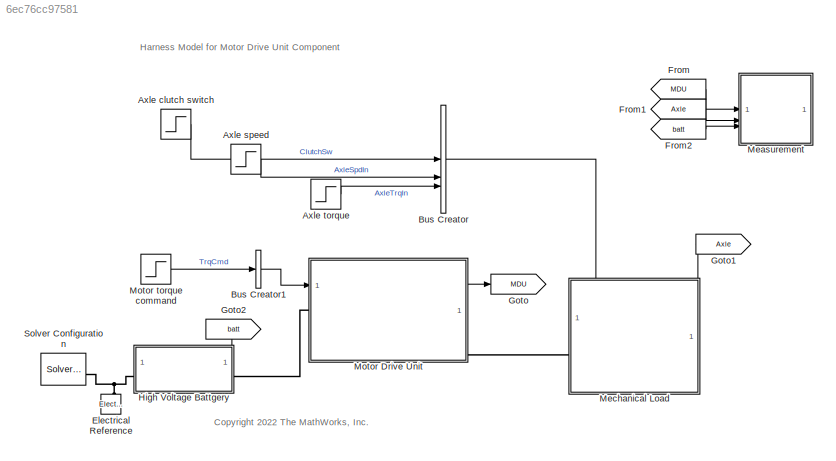
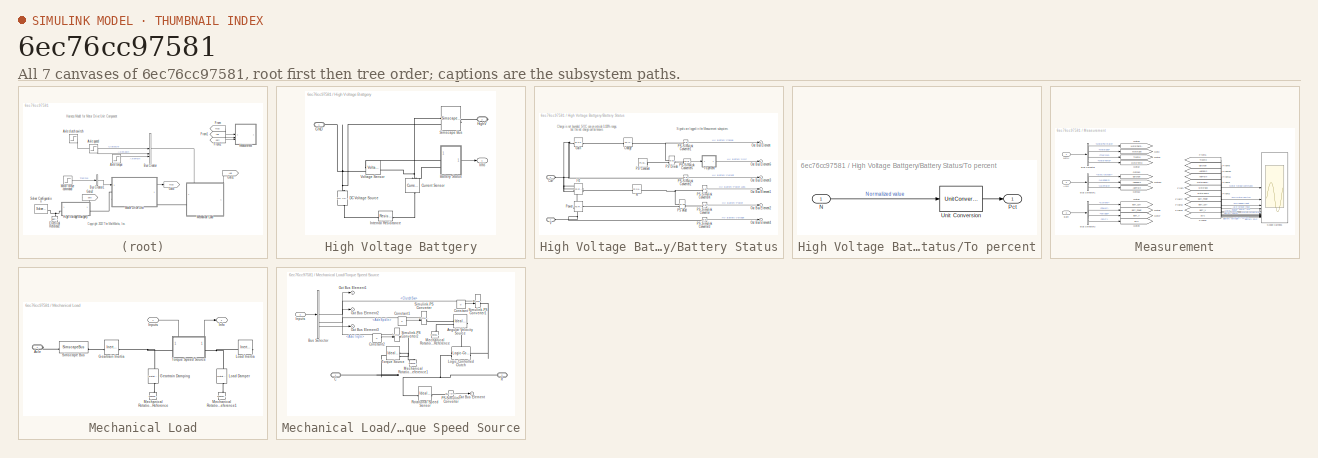
[diagram: thumbnail index - all 7 canvases of the model, root first then tree order]
MODEL mdl_6ec76cc97581
KIND model
CONFIG AbsTol = auto
CONFIG EnableMultiTasking = off
CONFIG FixedStep = auto
CONFIG MaxStep = auto
CONFIG MinStep = auto
CONFIG PreLoadFcn = MotorDriveUnit_Component_harness_params\n
CONFIG RelTol = 1e-3
CONFIG SampleTimeConstraint = Unconstrained
CONFIG SolverName = daessc
CONFIG StartTime = 0.0
CONFIG StopTime = 600
BLOCK [Step] Axle clutch switch
  After = 0
  AttributesFormatString = Before %<Before>\nTime %<Time>\nAfter %<After>
  NameLocation = left
  SampleTime = 0
BLOCK [Step] Axle speed
  After = 0
  AttributesFormatString = Before %<Before>\nTime %<Time>\nAfter %<After>
  NameLocation = left
  SampleTime = 0
BLOCK [Step] Axle torque
  After = 0
  AttributesFormatString = Before %<Before>\nTime %<Time>\nAfter %<After>
  Before = -10
  NameLocation = left
  SampleTime = 0
  Time = 400
BLOCK [BusCreator] Bus Creator
  DisplayOption = bar
  InheritFromInputs = on
  Inputs = 3
BLOCK [BusCreator] Bus Creator1
  DisplayOption = bar
  InheritFromInputs = on
  Inputs = 1
BLOCK [Reference] Electrical Reference  REF=fl_lib/Electrical/Electrical Elements/Electrical Reference
  SourceBlock = fl_lib/Electrical/Electrical Elements/Electrical Reference
  SourceType = Electrical Reference
BLOCK [From] From
  GotoTag = MDU
  NameLocation = left
BLOCK [From] From1
  GotoTag = Axle
  NameLocation = left
BLOCK [From] From2
  GotoTag = batt
  NameLocation = left
BLOCK [Goto] Goto
  GotoTag = MDU
BLOCK [Goto] Goto1
  GotoTag = Axle
  NameLocation = top
BLOCK [Goto] Goto2
  GotoTag = batt
  NameLocation = top
BLOCK [SubSystem] High Voltage Battgery
  PortSchema = {"entries":[{"content":{"sides":[{"content":{"connectorIds":["LConn1"]},"type":"ConnectorPlacement.EquallySpacedRectSide","uuid":"8acd7e9a-bb08-4de6-aa14-0989ebba81b9"},{"content":{"connectorIds":["RConn1"],"side":"RIGHT"},"type":"ConnectorPlacement.EquallySpacedRectSide","uuid":"f80e1afc-966f-4d6b-84f9-f0b60dd6f20c"},{"content":{"connectorIds":["Out1"],"side":"TOP"},"type":"ConnectorPlacement.Equ...<+251ch>
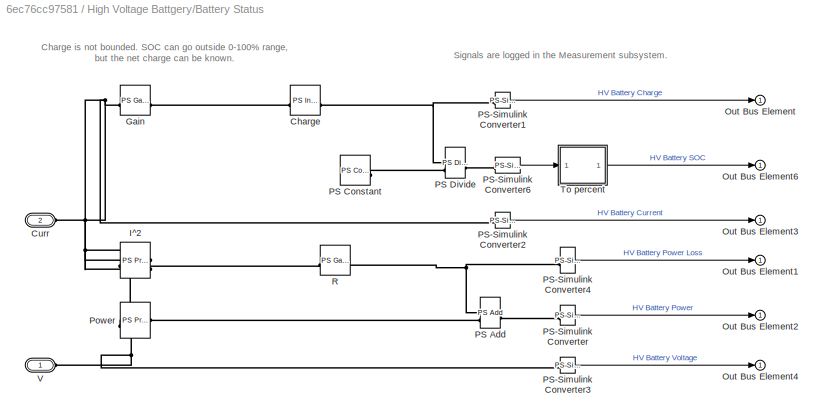
BLOCK [SubSystem] High Voltage Battgery/Battery Status
BLOCK [Reference] High Voltage Battgery/Battery Status/Charge  REF=fl_lib/Physical Signals/Linear Operators/PS Integrator
  AttributesFormatString = %<x0> [%<x0_unit>]
  SourceBlock = fl_lib/Physical Signals/Linear Operators/PS Integrator
  SourceType = PS Integrator
BLOCK [PMIOPort] High Voltage Battgery/Battery Status/Curr
  Port = 2
  Side = Left
BLOCK [Reference] High Voltage Battgery/Battery Status/Gain  REF=fl_lib/Physical Signals/Functions/PS Gain
  AttributesFormatString = %<gain>
  SourceBlock = fl_lib/Physical Signals/Functions/PS Gain
  SourceType = PS Gain
BLOCK [Reference] High Voltage Battgery/Battery Status/I^2  REF=fl_lib/Physical Signals/Functions/PS Product
  SourceBlock = fl_lib/Physical Signals/Functions/PS Product
  SourceType = PS Product
BLOCK [Outport] High Voltage Battgery/Battery Status/Out Bus Element
  AttributesFormatString = %<Unit>
BLOCK [Outport] High Voltage Battgery/Battery Status/Out Bus Element1
  AttributesFormatString = %<Unit>
BLOCK [Outport] High Voltage Battgery/Battery Status/Out Bus Element2
  AttributesFormatString = %<Unit>
BLOCK [Outport] High Voltage Battgery/Battery Status/Out Bus Element3
  AttributesFormatString = %<Unit>
BLOCK [Outport] High Voltage Battgery/Battery Status/Out Bus Element4
  AttributesFormatString = %<Unit>
BLOCK [Outport] High Voltage Battgery/Battery Status/Out Bus Element6
  AttributesFormatString = %<Unit>
BLOCK [Reference] High Voltage Battgery/Battery Status/PS Add  REF=fl_lib/Physical Signals/Functions/PS Add
  SourceBlock = fl_lib/Physical Signals/Functions/PS Add
  SourceType = PS Add
BLOCK [Reference] High Voltage Battgery/Battery Status/PS Constant  REF=fl_lib/Physical Signals/Sources/PS Constant
  AttributesFormatString = %<constant> [%<constant_unit>]
  NameLocation = left
  SourceBlock = fl_lib/Physical Signals/Sources/PS Constant
  SourceType = PS Constant
BLOCK [Reference] High Voltage Battgery/Battery Status/PS Divide  REF=fl_lib/Physical Signals/Functions/PS Divide
  SourceBlock = fl_lib/Physical Signals/Functions/PS Divide
  SourceType = PS Divide
BLOCK [Reference] High Voltage Battgery/Battery Status/PS-Simulink Converter  REF=nesl_utility/PS-Simulink
Converter
  AttributesFormatString = %<Unit>
  SourceBlock = nesl_utility/PS-Simulink\nConverter
  SourceType = PS-Simulink\nConverter
BLOCK [Reference] High Voltage Battgery/Battery Status/PS-Simulink Converter1  REF=nesl_utility/PS-Simulink
Converter
  AttributesFormatString = %<Unit>
  SourceBlock = nesl_utility/PS-Simulink\nConverter
  SourceType = PS-Simulink\nConverter
BLOCK [Reference] High Voltage Battgery/Battery Status/PS-Simulink Converter2  REF=nesl_utility/PS-Simulink
Converter
  AttributesFormatString = %<Unit>
  SourceBlock = nesl_utility/PS-Simulink\nConverter
  SourceType = PS-Simulink\nConverter
BLOCK [Reference] High Voltage Battgery/Battery Status/PS-Simulink Converter3  REF=nesl_utility/PS-Simulink
Converter
  AttributesFormatString = %<Unit>
  SourceBlock = nesl_utility/PS-Simulink\nConverter
  SourceType = PS-Simulink\nConverter
BLOCK [Reference] High Voltage Battgery/Battery Status/PS-Simulink Converter4  REF=nesl_utility/PS-Simulink
Converter
  AttributesFormatString = %<Unit>
  SourceBlock = nesl_utility/PS-Simulink\nConverter
  SourceType = PS-Simulink\nConverter
BLOCK [Reference] High Voltage Battgery/Battery Status/PS-Simulink Converter6  REF=nesl_utility/PS-Simulink
Converter
  AttributesFormatString = %<Unit>
  SourceBlock = nesl_utility/PS-Simulink\nConverter
  SourceType = PS-Simulink\nConverter
BLOCK [Reference] High Voltage Battgery/Battery Status/Power  REF=fl_lib/Physical Signals/Functions/PS Product
  SourceBlock = fl_lib/Physical Signals/Functions/PS Product
  SourceType = PS Product
BLOCK [Reference] High Voltage Battgery/Battery Status/R  REF=fl_lib/Physical Signals/Functions/PS Gain
  AttributesFormatString = %<gain> [%<gain_unit>]
  SourceBlock = fl_lib/Physical Signals/Functions/PS Gain
  SourceType = PS Gain
BLOCK [SubSystem] High Voltage Battgery/Battery Status/To percent
  ShowPortLabels = FromPortBlockName
BLOCK [Inport] High Voltage Battgery/Battery Status/To percent/N
BLOCK [Outport] High Voltage Battgery/Battery Status/To percent/Pct
  AttributesFormatString = %<Unit>
  Unit = %
BLOCK [UnitConversion] High Voltage Battgery/Battery Status/To percent/Unit Conversion
BLOCK [PMIOPort] High Voltage Battgery/Battery Status/V
  Side = Left
BLOCK [Reference] High Voltage Battgery/Current Sensor  REF=fl_lib/Electrical/Electrical Sensors/Current Sensor
  NameLocation = right
  SourceBlock = fl_lib/Electrical/Electrical Sensors/Current Sensor
  SourceType = Current Sensor
BLOCK [Reference] High Voltage Battgery/DC Voltage Source  REF=fl_lib/Electrical/Electrical Sources/DC Voltage Source
  AttributesFormatString = %<v0> [%<v0_unit>]
  NameLocation = right
  SourceBlock = fl_lib/Electrical/Electrical Sources/DC Voltage Source
  SourceType = DC Voltage Source
BLOCK [PMIOPort] High Voltage Battgery/GND
  Side = Left
BLOCK [PMIOPort] High Voltage Battgery/HighV
  Port = 2
  Side = Right
BLOCK [Outport] High Voltage Battgery/Info
BLOCK [Reference] High Voltage Battgery/Internal Resistance  REF=fl_lib/Electrical/Electrical Elements/Resistor
  AttributesFormatString = %<R> [%<R_unit>]
  SourceBlock = fl_lib/Electrical/Electrical Elements/Resistor
  SourceType = Resistor
BLOCK [SimscapeBus] High Voltage Battgery/Simscape Bus
  AttributesFormatString = %<ConnectionType>
  ConnectionType = Bus: Bus_HighVoltage
  HierarchyStrings = Plus;Minus
BLOCK [Reference] High Voltage Battgery/Voltage Sensor  REF=fl_lib/Electrical/Electrical Sensors/Voltage Sensor
  SourceBlock = fl_lib/Electrical/Electrical Sensors/Voltage Sensor
  SourceType = Voltage Sensor
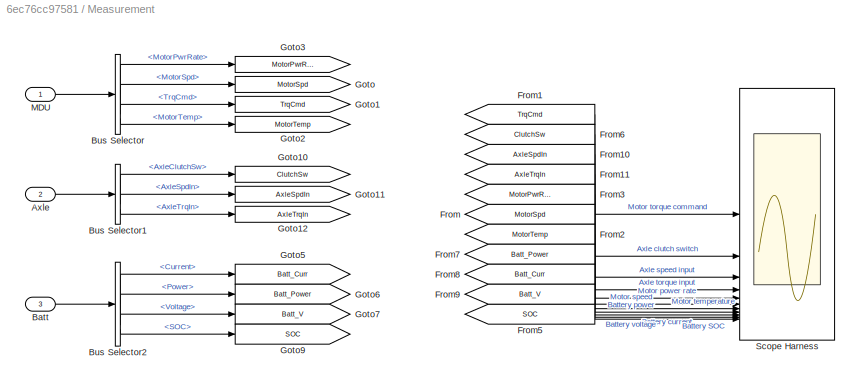
BLOCK [SubSystem] Measurement
BLOCK [Inport] Measurement/Axle
  Port = 2
BLOCK [Inport] Measurement/Batt
  Port = 3
BLOCK [BusSelector] Measurement/Bus Selector
  OutputSignals = MotorPwrRate,MotorSpd,TrqCmd,MotorTemp
BLOCK [BusSelector] Measurement/Bus Selector1
  OutputSignals = AxleClutchSw,AxleSpdIn,AxleTrqIn
BLOCK [BusSelector] Measurement/Bus Selector2
  OutputSignals = Current,Power,Voltage,SOC
BLOCK [From] Measurement/From
  GotoTag = MotorSpd
  NameLocation = left
BLOCK [From] Measurement/From1
  GotoTag = TrqCmd
  NameLocation = left
BLOCK [From] Measurement/From10
  GotoTag = AxleSpdIn
  NameLocation = left
BLOCK [From] Measurement/From11
  GotoTag = AxleTrqIn
  NameLocation = left
BLOCK [From] Measurement/From2
  GotoTag = MotorTemp
  NameLocation = left
BLOCK [From] Measurement/From3
  GotoTag = MotorPwrRate
  NameLocation = left
BLOCK [From] Measurement/From5
  GotoTag = SOC
  NameLocation = left
BLOCK [From] Measurement/From6
  GotoTag = ClutchSw
  NameLocation = left
BLOCK [From] Measurement/From7
  GotoTag = Batt_Power
  NameLocation = left
BLOCK [From] Measurement/From8
  GotoTag = Batt_Curr
  NameLocation = left
BLOCK [From] Measurement/From9
  GotoTag = Batt_V
  NameLocation = left
BLOCK [Goto] Measurement/Goto
  GotoTag = MotorSpd
  NameLocation = right
BLOCK [Goto] Measurement/Goto1
  GotoTag = TrqCmd
  NameLocation = right
BLOCK [Goto] Measurement/Goto10
  GotoTag = ClutchSw
  NameLocation = right
BLOCK [Goto] Measurement/Goto11
  GotoTag = AxleSpdIn
  NameLocation = right
BLOCK [Goto] Measurement/Goto12
  GotoTag = AxleTrqIn
  NameLocation = right
BLOCK [Goto] Measurement/Goto2
  GotoTag = MotorTemp
  NameLocation = right
BLOCK [Goto] Measurement/Goto3
  GotoTag = MotorPwrRate
  NameLocation = right
BLOCK [Goto] Measurement/Goto5
  GotoTag = Batt_Curr
  NameLocation = right
BLOCK [Goto] Measurement/Goto6
  GotoTag = Batt_Power
  NameLocation = right
BLOCK [Goto] Measurement/Goto7
  GotoTag = Batt_V
  NameLocation = right
BLOCK [Goto] Measurement/Goto9
  GotoTag = SOC
  NameLocation = right
BLOCK [Inport] Measurement/MDU
BLOCK [Scope] Measurement/Scope Harness
  Floating = off
  NumInputPorts = 11
  ScopeSpecificationString = Simulink.scopes.TimeScopeBlockCfg('CurrentConfiguration', extmgr.ConfigurationSet(extmgr.Configuration('Core','General UI',true),extmgr.Configuration('Core','Source UI',true),extmgr.Configuration('Sources','WiredSimulink',true),extmgr.Configuration('Visuals','Time Domain',true,'SerializedDisplays',{struct('MinYLimReal','-75.00000','MaxYLimReal','175.00000','YLabelReal','','MinYLimMag','0.00000','M...<+9093ch>
BLOCK [SubSystem] Mechanical Load
  PortSchema = {"entries":[{"content":{"sides":[{"content":{"connectorIds":["LConn1"]},"type":"ConnectorPlacement.EquallySpacedRectSide","uuid":"18221845-08ef-4cf2-b090-320221152030"},{"content":{"connectorIds":[],"side":"RIGHT"},"type":"ConnectorPlacement.EquallySpacedRectSide","uuid":"d5b0548b-74c8-455a-9783-7dc299f3571f"},{"content":{"connectorIds":["In1","Out1"],"side":"TOP"},"type":"ConnectorPlacement.Equal...<+249ch>
BLOCK [PMIOPort] Mechanical Load/Axle
  Side = Left
BLOCK [Reference] Mechanical Load/Geartrain Damping  REF=fl_lib/Mechanical/Rotational Elements/Rotational Damper
  AttributesFormatString = %<D>\n%<D_unit>
  NameLocation = left
  SourceBlock = fl_lib/Mechanical/Rotational Elements/Rotational Damper
  SourceType = Rotational Damper
BLOCK [Reference] Mechanical Load/Geartrain Inertia  REF=fl_lib/Mechanical/Rotational Elements/Inertia
  AttributesFormatString = %<inertia> %<inertia_unit>\nPriority: %<w_priority>
  NameLocation = top
  SourceBlock = fl_lib/Mechanical/Rotational Elements/Inertia
  SourceType = Inertia
BLOCK [Outport] Mechanical Load/Info
BLOCK [Inport] Mechanical Load/Inputs
BLOCK [Reference] Mechanical Load/Load Damper  REF=fl_lib/Mechanical/Rotational Elements/Rotational Damper
  AttributesFormatString = %<D>\n%<D_unit>
  NameLocation = right
  SourceBlock = fl_lib/Mechanical/Rotational Elements/Rotational Damper
  SourceType = Rotational Damper
BLOCK [Reference] Mechanical Load/Load Inertia  REF=fl_lib/Mechanical/Rotational Elements/Inertia
  AttributesFormatString = %<inertia> [%<inertia_unit>]\n%<w> [%<w_unit>]\nPriority: %<w_priority>
  NameLocation = right
  SourceBlock = fl_lib/Mechanical/Rotational Elements/Inertia
  SourceType = Inertia
BLOCK [Reference] Mechanical Load/Mechanical Rotational Reference  REF=fl_lib/Mechanical/Rotational Elements/Mechanical
Rotational Reference
  NameLocation = left
  SourceBlock = fl_lib/Mechanical/Rotational Elements/Mechanical\nRotational Reference
  SourceType = Mechanical\nRotational Reference
BLOCK [Reference] Mechanical Load/Mechanical Rotational Reference1  REF=fl_lib/Mechanical/Rotational Elements/Mechanical
Rotational Reference
  NameLocation = right
  SourceBlock = fl_lib/Mechanical/Rotational Elements/Mechanical\nRotational Reference
  SourceType = Mechanical\nRotational Reference
BLOCK [SimscapeBus] Mechanical Load/Simscape Bus
  ConnectionType = Bus: Bus_Rotational
  HierarchyStrings = AngSpd
BLOCK [SubSystem] Mechanical Load/Torque Speed Source
  PortSchema = {"entries":[{"content":{"sides":[{"content":{"connectorIds":["LConn1"]},"type":"ConnectorPlacement.EquallySpacedRectSide","uuid":"92a06674-aaa2-495f-b380-fd1e5a218eb3"},{"content":{"connectorIds":["RConn1"],"side":"RIGHT"},"type":"ConnectorPlacement.EquallySpacedRectSide","uuid":"3e9807eb-b215-4ab1-ac02-6574a58f93c0"},{"content":{"connectorIds":["In1","Out1"],"side":"TOP"},"type":"ConnectorPlaceme...<+257ch>
BLOCK [Reference] Mechanical Load/Torque Speed Source/Angular Velocity Source  REF=fl_lib/Mechanical/Mechanical Sources/Ideal Angular
Velocity Source
  SourceBlock = fl_lib/Mechanical/Mechanical Sources/Ideal Angular\nVelocity Source
  SourceType = Ideal Angular\nVelocity Source
BLOCK [BusSelector] Mechanical Load/Torque Speed Source/Bus Selector
  OutputSignals = ClutchSw,AxleSpdIn,AxleTrqIn
BLOCK [PMIOPort] Mechanical Load/Torque Speed Source/C
  Side = Left
BLOCK [Constant] Mechanical Load/Torque Speed Source/Constant
  NameLocation = left
  Value = 0
BLOCK [Constant] Mechanical Load/Torque Speed Source/Constant1
  NameLocation = left
  Value = 0
BLOCK [Constant] Mechanical Load/Torque Speed Source/Constant2
  NameLocation = left
  Value = 0
BLOCK [Inport] Mechanical Load/Torque Speed Source/Inputs
BLOCK [Reference] Mechanical Load/Torque Speed Source/Logic-Controlled Clutch  REF=sdl_lib/Clutches/Logic-Controlled
Clutch
  SourceBlock = sdl_lib/Clutches/Logic-Controlled\nClutch
  SourceType = Logic-Controlled\nClutch
BLOCK [Reference] Mechanical Load/Torque Speed Source/Mechanical Rotational Reference  REF=fl_lib/Mechanical/Rotational Elements/Mechanical
Rotational Reference
  NameLocation = left
  SourceBlock = fl_lib/Mechanical/Rotational Elements/Mechanical\nRotational Reference
  SourceType = Mechanical\nRotational Reference
BLOCK [Reference] Mechanical Load/Torque Speed Source/Mechanical Rotational Reference1  REF=fl_lib/Mechanical/Rotational Elements/Mechanical
Rotational Reference
  SourceBlock = fl_lib/Mechanical/Rotational Elements/Mechanical\nRotational Reference
  SourceType = Mechanical\nRotational Reference
BLOCK [Outport] Mechanical Load/Torque Speed Source/Out Bus Element
BLOCK [Outport] Mechanical Load/Torque Speed Source/Out Bus Element1
  NameLocation = top
BLOCK [Outport] Mechanical Load/Torque Speed Source/Out Bus Element2
  NameLocation = top
BLOCK [Outport] Mechanical Load/Torque Speed Source/Out Bus Element3
  NameLocation = top
BLOCK [Reference] Mechanical Load/Torque Speed Source/PS-Simulink Converter  REF=nesl_utility/PS-Simulink
Converter
  AttributesFormatString = %<Unit>
  SourceBlock = nesl_utility/PS-Simulink\nConverter
  SourceType = PS-Simulink\nConverter
BLOCK [PMIOPort] Mechanical Load/Torque Speed Source/R
  Port = 2
  Side = Right
BLOCK [Reference] Mechanical Load/Torque Speed Source/Rotational Speed Sensor  REF=fl_lib/Mechanical/Mechanical Sensors/Ideal Rotational
Motion Sensor
  SourceBlock = fl_lib/Mechanical/Mechanical Sensors/Ideal Rotational\nMotion Sensor
  SourceType = Ideal Rotational\nMotion Sensor
BLOCK [Reference] Mechanical Load/Torque Speed Source/Simulink-PS Converter  REF=nesl_utility/Simulink-PS
Converter
  AttributesFormatString = %<Unit>
  SourceBlock = nesl_utility/Simulink-PS\nConverter
  SourceType = Simulink-PS\nConverter
BLOCK [Reference] Mechanical Load/Torque Speed Source/Simulink-PS Converter1  REF=nesl_utility/Simulink-PS
Converter
  AttributesFormatString = %<Unit>\nDerivative: %<FilteringAndDerivatives>
  NameLocation = top
  SourceBlock = nesl_utility/Simulink-PS\nConverter
  SourceType = Simulink-PS\nConverter
BLOCK [Reference] Mechanical Load/Torque Speed Source/Simulink-PS Converter2  REF=nesl_utility/Simulink-PS
Converter
  AttributesFormatString = %<Unit>
  NameLocation = top
  SourceBlock = nesl_utility/Simulink-PS\nConverter
  SourceType = Simulink-PS\nConverter
BLOCK [Reference] Mechanical Load/Torque Speed Source/Torque Source  REF=fl_lib/Mechanical/Mechanical Sources/Ideal Torque Source
  SourceBlock = fl_lib/Mechanical/Mechanical Sources/Ideal Torque Source
  SourceType = Ideal Torque Source
BLOCK [SubSystem] Motor Drive Unit
  PortSchema = {"entries":[{"content":{"sides":[{"content":{"connectorIds":["In1","LConn1"]},"type":"ConnectorPlacement.EquallySpacedRectSide","uuid":"02d16a10-ccfb-4288-a5a1-1144159c5ca2"},{"content":{"connectorIds":["Out1","LConn2"],"side":"RIGHT"},"type":"ConnectorPlacement.EquallySpacedRectSide","uuid":"b2601986-efe5-4f5e-bd54-3f5cb03e9252"},{"content":{"side":"TOP"},"type":"ConnectorPlacement.EquallySpacedR...<+240ch>
  ReferencedSubsystem = MotorDriveUnit_refsub_Basic
  T = initial.MDU_AirTemp_K
  T_eff = motorDriveUnit.trq_eff_Nm
  Tc = motorDriveUnit.responseTime_s
  Value = motorDriveUnit.powerMax_kW
  eff = motorDriveUnit.efficiency_pct
  k = motorDriveUnit.dampSpringStiffness_Nm_per_rad
  mu_visc = motorDriveUnit.dampSpringFriction_Nm_per_rpm
  temperature = initial.MDU_Temperature_K
  thermal_mass = motorDriveUnit.thermalMass_J_perK
  torque_max = motorDriveUnit.trqMax_Nm
  w_eff = motorDriveUnit.spd_eff_rpm
  w_tol = smoothing.MDU_dampSpringVelTol_rpm
BLOCK [Step] Motor torque command
  After = -50
  AttributesFormatString = Before %<Before>\nTime %<Time>\nAfter %<After>
  Before = 150
  NameLocation = left
  SampleTime = 0
  Time = 300
BLOCK [Reference] Solver Configuration  REF=nesl_utility/Solver
Configuration
  AttributesFormatString = Local solver %<UseLocalSolver>
  NameLocation = top
  SourceBlock = nesl_utility/Solver\nConfiguration
  SourceType = Solver\nConfiguration
ANNOTATION (root): <copyright redacted>
ANNOTATION (root): Harness Model for Motor Drive Unit Component
ANNOTATION High Voltage Battgery/Battery Status: Charge is not bounded. SOC can go outside 0-100% range, but the net charge can be known.
ANNOTATION High Voltage Battgery/Battery Status: Signals are logged in the Measurement subsystem.
LINE Axle clutch switch:1 -> Bus Creator:1
LINE Axle speed:1 -> Bus Creator:2
LINE Axle torque:1 -> Bus Creator:3
LINE Bus Creator1:1 -> Motor Drive Unit:1
LINE Bus Creator:1 -> Mechanical Load:1
LINE From1:1 -> Measurement:2
LINE From2:1 -> Measurement:3
LINE From:1 -> Measurement:1
LINE High Voltage Battgery/Battery Status/PS-Simulink Converter1:1 -> High Voltage Battgery/Battery Status/Out Bus Element:1
LINE High Voltage Battgery/Battery Status/PS-Simulink Converter2:1 -> High Voltage Battgery/Battery Status/Out Bus Element3:1
LINE High Voltage Battgery/Battery Status/PS-Simulink Converter3:1 -> High Voltage Battgery/Battery Status/Out Bus Element4:1
LINE High Voltage Battgery/Battery Status/PS-Simulink Converter4:1 -> High Voltage Battgery/Battery Status/Out Bus Element1:1
LINE High Voltage Battgery/Battery Status/PS-Simulink Converter6:1 -> High Voltage Battgery/Battery Status/To percent:1
LINE High Voltage Battgery/Battery Status/PS-Simulink Converter:1 -> High Voltage Battgery/Battery Status/Out Bus Element2:1
LINE High Voltage Battgery/Battery Status/To percent/N:1 -> High Voltage Battgery/Battery Status/To percent/Unit Conversion:1
LINE High Voltage Battgery/Battery Status/To percent/Unit Conversion:1 -> High Voltage Battgery/Battery Status/To percent/Pct:1
LINE High Voltage Battgery/Battery Status/To percent:1 -> High Voltage Battgery/Battery Status/Out Bus Element6:1
LINE High Voltage Battgery/Battery Status:1 -> High Voltage Battgery/Info:1
LINE High Voltage Battgery:1 -> Goto2:1
LINE Measurement/Axle:1 -> Measurement/Bus Selector1:1
LINE Measurement/Batt:1 -> Measurement/Bus Selector2:1
LINE Measurement/Bus Selector1:1 -> Measurement/Goto10:1
LINE Measurement/Bus Selector1:2 -> Measurement/Goto11:1
LINE Measurement/Bus Selector1:3 -> Measurement/Goto12:1
LINE Measurement/Bus Selector2:1 -> Measurement/Goto5:1
LINE Measurement/Bus Selector2:2 -> Measurement/Goto6:1
LINE Measurement/Bus Selector2:3 -> Measurement/Goto7:1
LINE Measurement/Bus Selector2:4 -> Measurement/Goto9:1
LINE Measurement/Bus Selector:1 -> Measurement/Goto3:1
LINE Measurement/Bus Selector:2 -> Measurement/Goto:1
LINE Measurement/Bus Selector:3 -> Measurement/Goto1:1
LINE Measurement/Bus Selector:4 -> Measurement/Goto2:1
LINE Measurement/From10:1 -> Measurement/Scope Harness:3
LINE Measurement/From11:1 -> Measurement/Scope Harness:4
LINE Measurement/From1:1 -> Measurement/Scope Harness:1
LINE Measurement/From2:1 -> Measurement/Scope Harness:7
LINE Measurement/From3:1 -> Measurement/Scope Harness:5
LINE Measurement/From5:1 -> Measurement/Scope Harness:11
LINE Measurement/From6:1 -> Measurement/Scope Harness:2
LINE Measurement/From7:1 -> Measurement/Scope Harness:8
LINE Measurement/From8:1 -> Measurement/Scope Harness:9
LINE Measurement/From9:1 -> Measurement/Scope Harness:10
LINE Measurement/From:1 -> Measurement/Scope Harness:6
LINE Measurement/MDU:1 -> Measurement/Bus Selector:1
LINE Mechanical Load/Inputs:1 -> Mechanical Load/Torque Speed Source:1
NET Mechanical Load/Torque Speed Source/Bus Selector:1 -> Mechanical Load/Torque Speed Source/Out Bus Element1:1, Mechanical Load/Torque Speed Source/Simulink-PS Converter1:1
NET Mechanical Load/Torque Speed Source/Bus Selector:2 -> Mechanical Load/Torque Speed Source/Out Bus Element2:1, Mechanical Load/Torque Speed Source/Simulink-PS Converter:1
NET Mechanical Load/Torque Speed Source/Bus Selector:3 -> Mechanical Load/Torque Speed Source/Out Bus Element3:1, Mechanical Load/Torque Speed Source/Simulink-PS Converter2:1
LINE Mechanical Load/Torque Speed Source/Constant1:1 -> Mechanical Load/Torque Speed Source/Simulink-PS Converter:2
LINE Mechanical Load/Torque Speed Source/Constant2:1 -> Mechanical Load/Torque Speed Source/Simulink-PS Converter2:2
LINE Mechanical Load/Torque Speed Source/Constant:1 -> Mechanical Load/Torque Speed Source/Simulink-PS Converter1:2
LINE Mechanical Load/Torque Speed Source/Inputs:1 -> Mechanical Load/Torque Speed Source/Bus Selector:1
LINE Mechanical Load/Torque Speed Source/PS-Simulink Converter:1 -> Mechanical Load/Torque Speed Source/Out Bus Element:1
LINE Mechanical Load/Torque Speed Source:1 -> Mechanical Load/Info:1
LINE Mechanical Load:1 -> Goto1:1
LINE Motor Drive Unit:1 -> Goto:1
LINE Motor torque command:1 -> Bus Creator1:1
PNET net1: Electrical Reference:LConn1 -- High Voltage Battgery:LConn1 -- Solver Configuration:RConn1
PLINE High Voltage Battgery/Battery Status/Charge:LConn1 -- High Voltage Battgery/Battery Status/Gain:RConn1
PNET net2: High Voltage Battgery/Battery Status/Charge:RConn1 -- High Voltage Battgery/Battery Status/PS Divide:LConn1 -- High Voltage Battgery/Battery Status/PS-Simulink Converter1:LConn1
PNET net3: High Voltage Battgery/Battery Status/Curr:RConn1 -- High Voltage Battgery/Battery Status/Gain:LConn1 -- High Voltage Battgery/Battery Status/I^2:LConn1 -- High Voltage Battgery/Battery Status/I^2:LConn2 -- High Voltage Battgery/Battery Status/PS-Simulink Converter2:LConn1 -- High Voltage Battgery/Battery Status/Power:LConn2
PLINE High Voltage Battgery/Battery Status/I^2:RConn1 -- High Voltage Battgery/Battery Status/R:LConn1
PNET net4: High Voltage Battgery/Battery Status/PS Add:LConn1 -- High Voltage Battgery/Battery Status/PS-Simulink Converter4:LConn1 -- High Voltage Battgery/Battery Status/R:RConn1
PLINE High Voltage Battgery/Battery Status/PS Add:LConn2 -- High Voltage Battgery/Battery Status/Power:RConn1
PLINE High Voltage Battgery/Battery Status/PS Add:RConn1 -- High Voltage Battgery/Battery Status/PS-Simulink Converter:LConn1
PLINE High Voltage Battgery/Battery Status/PS Constant:RConn1 -- High Voltage Battgery/Battery Status/PS Divide:LConn2
PLINE High Voltage Battgery/Battery Status/PS Divide:RConn1 -- High Voltage Battgery/Battery Status/PS-Simulink Converter6:LConn1
PNET net5: High Voltage Battgery/Battery Status/PS-Simulink Converter3:LConn1 -- High Voltage Battgery/Battery Status/Power:LConn1 -- High Voltage Battgery/Battery Status/V:RConn1
PLINE High Voltage Battgery/Battery Status:LConn1 -- High Voltage Battgery/Voltage Sensor:RConn1
PLINE High Voltage Battgery/Battery Status:LConn2 -- High Voltage Battgery/Current Sensor:RConn1
PLINE High Voltage Battgery/Current Sensor:LConn1 -- High Voltage Battgery/Internal Resistance:RConn1
PNET net6: High Voltage Battgery/Current Sensor:RConn2 -- High Voltage Battgery/Simscape Bus:LConn1 -- High Voltage Battgery/Voltage Sensor:LConn1
PLINE High Voltage Battgery/DC Voltage Source:LConn1 -- High Voltage Battgery/Internal Resistance:LConn1
PNET net7: High Voltage Battgery/DC Voltage Source:RConn1 -- High Voltage Battgery/GND:RConn1 -- High Voltage Battgery/Simscape Bus:LConn2 -- High Voltage Battgery/Voltage Sensor:RConn2
PLINE High Voltage Battgery/HighV:RConn1 -- High Voltage Battgery/Simscape Bus:RConn1
PLINE High Voltage Battgery:RConn1 -- Motor Drive Unit:LConn1
PLINE Mechanical Load/Axle:RConn1 -- Mechanical Load/Simscape Bus:RConn1
PNET net8: Mechanical Load/Geartrain Damping:LConn1 -- Mechanical Load/Geartrain Inertia:LConn1 -- Mechanical Load/Torque Speed Source:LConn1
PLINE Mechanical Load/Geartrain Damping:RConn1 -- Mechanical Load/Mechanical Rotational Reference:LConn1
PLINE Mechanical Load/Geartrain Inertia:RConn1 -- Mechanical Load/Simscape Bus:LConn1
PNET net9: Mechanical Load/Load Damper:LConn1 -- Mechanical Load/Load Inertia:LConn1 -- Mechanical Load/Torque Speed Source:RConn1
PLINE Mechanical Load/Load Damper:RConn1 -- Mechanical Load/Mechanical Rotational Reference1:LConn1
PLINE Mechanical Load/Torque Speed Source/Angular Velocity Source:LConn1 -- Mechanical Load/Torque Speed Source/Logic-Controlled Clutch:LConn2
PLINE Mechanical Load/Torque Speed Source/Angular Velocity Source:RConn1 -- Mechanical Load/Torque Speed Source/Simulink-PS Converter:RConn1
PLINE Mechanical Load/Torque Speed Source/Angular Velocity Source:RConn2 -- Mechanical Load/Torque Speed Source/Mechanical Rotational Reference:LConn1
PNET net10: Mechanical Load/Torque Speed Source/C:RConn1 -- Mechanical Load/Torque Speed Source/Logic-Controlled Clutch:RConn1 -- Mechanical Load/Torque Speed Source/R:RConn1 -- Mechanical Load/Torque Speed Source/Rotational Speed Sensor:LConn1 -- Mechanical Load/Torque Speed Source/Torque Source:LConn1
PLINE Mechanical Load/Torque Speed Source/Logic-Controlled Clutch:LConn1 -- Mechanical Load/Torque Speed Source/Simulink-PS Converter1:RConn1
PLINE Mechanical Load/Torque Speed Source/Mechanical Rotational Reference1:LConn1 -- Mechanical Load/Torque Speed Source/Torque Source:RConn2
PLINE Mechanical Load/Torque Speed Source/PS-Simulink Converter:LConn1 -- Mechanical Load/Torque Speed Source/Rotational Speed Sensor:RConn1
PLINE Mechanical Load/Torque Speed Source/Simulink-PS Converter2:RConn1 -- Mechanical Load/Torque Speed Source/Torque Source:RConn1
PLINE Mechanical Load:LConn1 -- Motor Drive Unit:LConn2
note: NET lines group one-source signal fan-out (src -> all destinations, sorted); 1:1 wires keep LINE; PNET lines group multi-terminal physical nets as a canonical sorted terminal list (undirected conserving connections); 2-terminal nets keep the pairwise PLINE form
